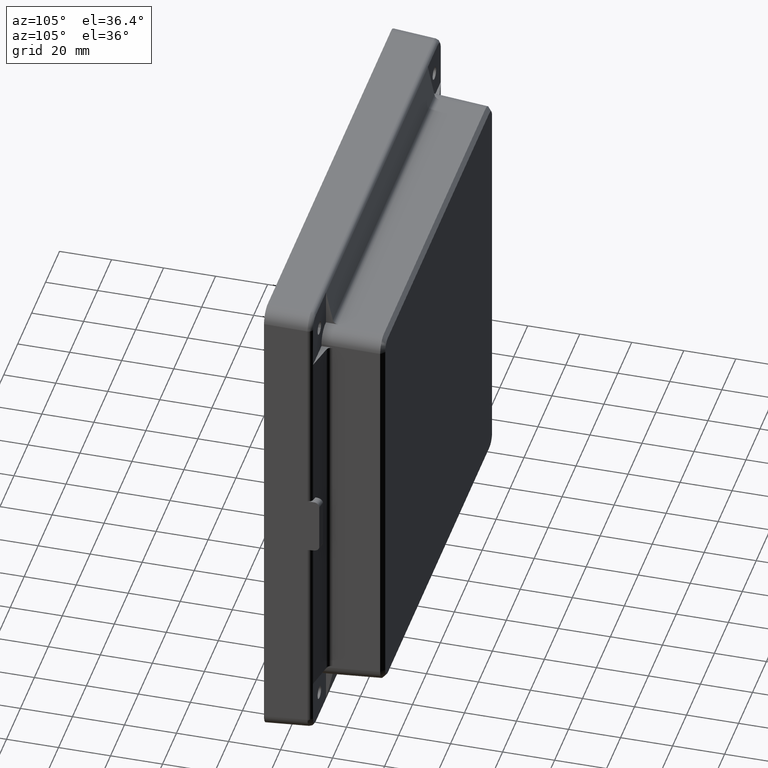
[diagram: clean part render]
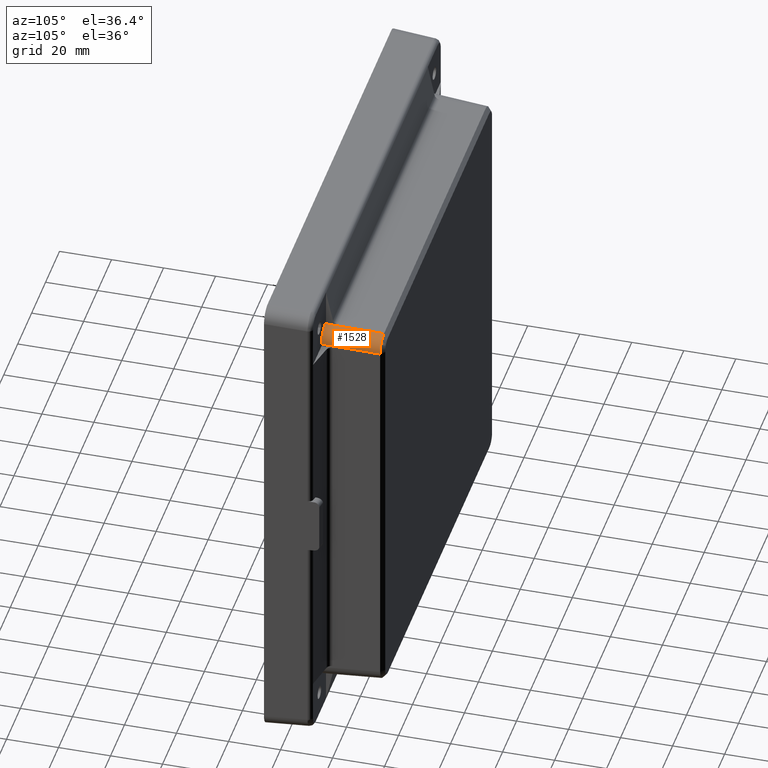
[diagram: same view with one face highlighted and labeled with its STEP entity id]
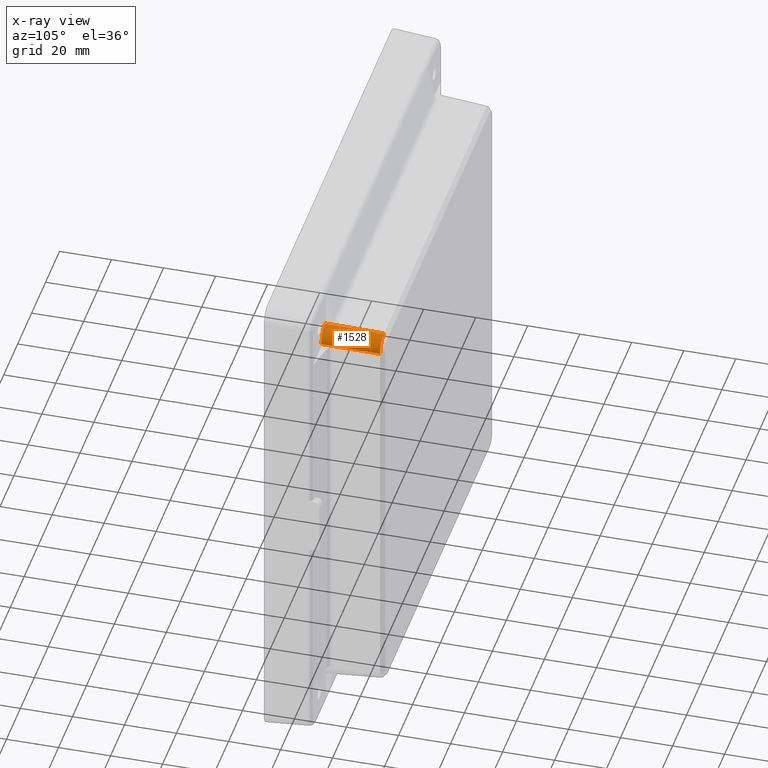
[diagram: x-ray of the same camera — body ghosted, the highlighted face saturated]
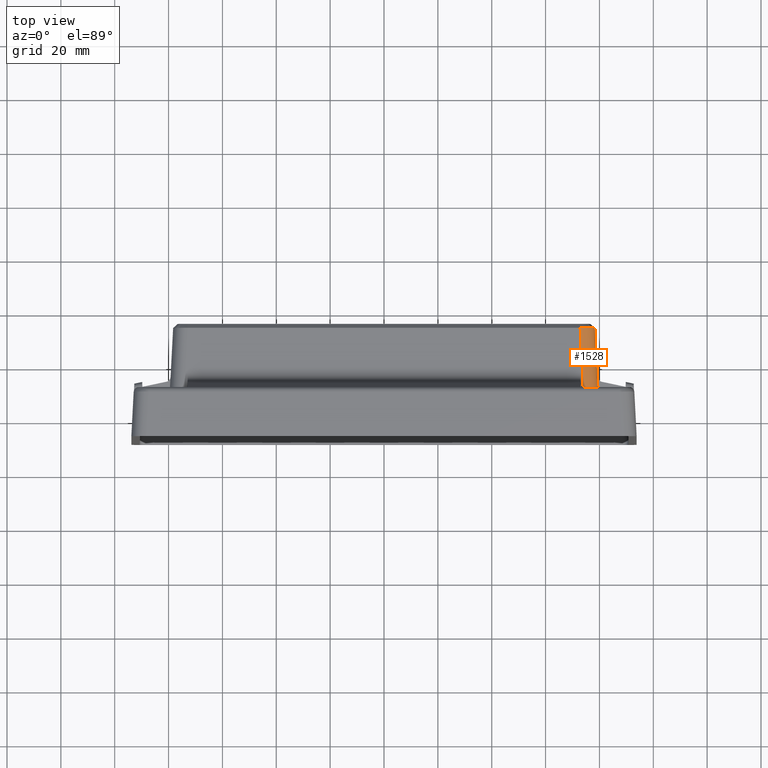
[diagram: same view with one face highlighted and labeled with its STEP entity id]
A machine part, auxiliary view. The second image highlights one B-rep face of the part: STEP entity #1528.
The next image is the same camera in x-ray: the body ghosted, the highlighted face saturated — about 0% of this face is hidden behind the body in this view.
A second angle (top view) of the same face is appended — the face is thin or edge-on in the first view.
In plain terms, the highlighted face is a freeform B-spline surface patch.
Its self-contained STEP definition (entity closure, byte-faithful):
#68 = CARTESIAN_POINT ( 'NONE',  ( 78.19257425562209100, 32.50979039867434000, 74.36611753135186100 ) ) ;
#136 = AXIS2_PLACEMENT_3D ( 'NONE', #3120, #2458, #1789 ) ;
#269 = ORIENTED_EDGE ( 'NONE', *, *, #2089, .F. ) ;
#346 = CARTESIAN_POINT ( 'NONE',  ( 78.19257425562209100, 32.50979039867434000, 74.36611753135186100 ) ) ;
#392 = CARTESIAN_POINT ( 'NONE',  ( 73.96967373504922700, 10.26305314132466200, 79.96213617619935100 ) ) ;
#416 = CARTESIAN_POINT ( 'NONE',  ( 73.86611751265680000, 32.50979093077406600, 78.69257422593514700 ) ) ;
#594 = EDGE_CURVE ( 'NONE', #4984, #1934, #2687, .T. ) ;
#851 = FACE_OUTER_BOUND ( 'NONE', #4111, .T. ) ;
#1033 = CARTESIAN_POINT ( 'NONE',  ( 78.26197522933144100, 32.50205569786814400, 74.01615419277695200 ) ) ;
#1053 = CARTESIAN_POINT ( 'NONE',  ( 78.29663943874103900, 32.50205569786815100, 73.30417699759087200 ) ) ;
#1083 = CARTESIAN_POINT ( 'NONE',  ( 76.02158700479181200, 32.50205569786818000, 78.79663943874099600 ) ) ;
#1243 = VERTEX_POINT ( 'NONE', #1053 ) ;
#1528 = ADVANCED_FACE ( 'NONE', ( #851 ), #6335, .F. ) ;
#1714 = CARTESIAN_POINT ( 'NONE',  ( 78.29663943874103900, 32.50205569786814400, 73.66100944764303900 ) ) ;
#1766 = CARTESIAN_POINT ( 'NONE',  ( 77.18708374225015200, 10.26305314132466300, 79.96213617619933700 ) ) ;
#1789 = DIRECTION ( 'NONE',  ( 0.0000000000000000000, 0.0000000000000000000, 1.000000000000000000 ) ) ;
#1803 = VECTOR ( 'NONE', #2147, 1000.000000000000200 ) ;
#1934 = VERTEX_POINT ( 'NONE', #4890 ) ;
#2089 = EDGE_CURVE ( 'NONE', #1243, #4411, #4048, .T. ) ;
#2147 = DIRECTION ( 'NONE',  ( -0.05226442768871404600, 0.9972646886342372300, -0.05226442768871402500 ) ) ;
#2188 = EDGE_CURVE ( 'NONE', #5834, #4984, #3757, .T. ) ;
#2303 = CARTESIAN_POINT ( 'NONE',  ( 73.96967373504922700, 10.26305314132466200, 79.96213617619935100 ) ) ;
#2388 = CARTESIAN_POINT ( 'NONE',  ( 78.29663943874103900, 32.50205569786815100, 73.30417699759087200 ) ) ;
#2401 =( BOUNDED_CURVE ( )  B_SPLINE_CURVE ( 3, ( #2388, #1714, #1033, #346 ),
 .UNSPECIFIED., .F., .T. ) 
 B_SPLINE_CURVE_WITH_KNOTS ( ( 4, 4 ),
 ( 0.0000000000000000000, 1.000000000000000000 ),
 .UNSPECIFIED. ) 
 CURVE ( )  GEOMETRIC_REPRESENTATION_ITEM ( )  RATIONAL_B_SPLINE_CURVE ( ( 1.000000000000000000, 0.9968468769810654400, 0.9968468769810654400, 1.000000000000000000 ) ) 
 REPRESENTATION_ITEM ( '' )  );
#2408 = ORIENTED_EDGE ( 'NONE', *, *, #4771, .T. ) ;
#2432 = CARTESIAN_POINT ( 'NONE',  ( 78.29663943874103900, 32.50205569786818000, 76.52158700479179700 ) ) ;
#2458 = DIRECTION ( 'NONE',  ( -0.0000000000000000000, -1.000000000000000000, -0.0000000000000000000 ) ) ;
#2687 =( BOUNDED_CURVE ( )  B_SPLINE_CURVE ( 3, ( #416, #6237, #5575, #4916 ),
 .UNSPECIFIED., .F., .F. ) 
 B_SPLINE_CURVE_WITH_KNOTS ( ( 4, 4 ),
 ( 0.0000000000000000000, 1.000000000000000000 ),
 .UNSPECIFIED. ) 
 CURVE ( )  GEOMETRIC_REPRESENTATION_ITEM ( )  RATIONAL_B_SPLINE_CURVE ( ( 1.000000000000000000, 0.9968468769811278400, 0.9968468769811278400, 1.000000000000000000 ) ) 
 REPRESENTATION_ITEM ( '' )  );
#2740 = DIRECTION ( 'NONE',  ( 0.05226442768871403200, -0.9972646886342372300, 0.05226442768871403200 ) ) ;
#2809 = CARTESIAN_POINT ( 'NONE',  ( 74.08548934242557500, 8.053159706404091600, 80.07795178357569900 ) ) ;
#3071 = CARTESIAN_POINT ( 'NONE',  ( 79.46213617619938000, 10.26305314132466200, 74.46967373504919900 ) ) ;
#3094 = CARTESIAN_POINT ( 'NONE',  ( 79.46213617619938000, 10.26305314132466300, 77.68708374225012400 ) ) ;
#3120 = CARTESIAN_POINT ( 'NONE',  ( 73.96967373504922700, 10.26305314132466200, 74.46967373504919900 ) ) ;
#3392 = CARTESIAN_POINT ( 'NONE',  ( 79.57522021317410600, 8.105281174609722000, 74.58275777202392500 ) ) ;
#3496 = CARTESIAN_POINT ( 'NONE',  ( 73.86611751265680000, 32.50979093077406600, 78.69257422593514700 ) ) ;
#3726 = VERTEX_POINT ( 'NONE', #2303 ) ;
#3745 = CARTESIAN_POINT ( 'NONE',  ( 78.29663943874103900, 32.50205569786818000, 73.30417699759087200 ) ) ;
#3757 =( BOUNDED_CURVE ( )  B_SPLINE_CURVE ( 3, ( #68, #5895, #5235, #4580 ),
 .UNSPECIFIED., .F., .F. ) 
 B_SPLINE_CURVE_WITH_KNOTS ( ( 4, 4 ),
 ( 0.0000000000000000000, 1.000000000000000000 ),
 .UNSPECIFIED. ) 
 CURVE ( )  GEOMETRIC_REPRESENTATION_ITEM ( )  RATIONAL_B_SPLINE_CURVE ( ( 1.000000000000000000, 0.8869958288577637400, 0.8869958288577637400, 1.000000000000000000 ) ) 
 REPRESENTATION_ITEM ( '' )  );
#3768 = EDGE_CURVE ( 'NONE', #3726, #1934, #4121, .T. ) ;
#4048 = LINE ( 'NONE', #3392, #4614 ) ;
#4111 = EDGE_LOOP ( 'NONE', ( #2408, #4257, #6101, #6412, #4994, #269 ) ) ;
#4121 = LINE ( 'NONE', #2809, #1803 ) ;
#4257 = ORIENTED_EDGE ( 'NONE', *, *, #2188, .T. ) ;
#4388 = CARTESIAN_POINT ( 'NONE',  ( 79.46213617619938000, 10.26305314132466200, 74.46967373504919900 ) ) ;
#4411 = VERTEX_POINT ( 'NONE', #3071 ) ;
#4580 = CARTESIAN_POINT ( 'NONE',  ( 73.86611751265680000, 32.50979093077406600, 78.69257422593514700 ) ) ;
#4614 = VECTOR ( 'NONE', #2740, 1000.000000000000200 ) ;
#4771 = EDGE_CURVE ( 'NONE', #1243, #5834, #2401, .T. ) ;
#4890 = CARTESIAN_POINT ( 'NONE',  ( 72.80417699759090100, 32.50205569786815100, 78.79663943874101100 ) ) ;
#4891 = EDGE_CURVE ( 'NONE', #4411, #3726, #5380, .T. ) ;
#4916 = CARTESIAN_POINT ( 'NONE',  ( 72.80417699759090100, 32.50205569786815100, 78.79663943874101100 ) ) ;
#4984 = VERTEX_POINT ( 'NONE', #3496 ) ;
#4994 = ORIENTED_EDGE ( 'NONE', *, *, #4891, .F. ) ;
#5235 = CARTESIAN_POINT ( 'NONE',  ( 76.12233978859325100, 32.50205569786815100, 78.24832373107373900 ) ) ;
#5359 = CARTESIAN_POINT ( 'NONE',  ( 78.19257425562209100, 32.50979039867434000, 74.36611753135186100 ) ) ;
#5380 = CIRCLE ( 'NONE', #136, 5.492462441150147300 ) ;
#5575 = CARTESIAN_POINT ( 'NONE',  ( 73.16100944763951500, 32.50205569786815800, 78.79663943874102500 ) ) ;
#5834 = VERTEX_POINT ( 'NONE', #5359 ) ;
#5895 = CARTESIAN_POINT ( 'NONE',  ( 77.74832373106738700, 32.50205569786815100, 76.62233978860277300 ) ) ;
#6101 = ORIENTED_EDGE ( 'NONE', *, *, #594, .T. ) ;
#6218 = CARTESIAN_POINT ( 'NONE',  ( 72.80417699759090100, 32.50205569786818000, 78.79663943874101100 ) ) ;
#6237 = CARTESIAN_POINT ( 'NONE',  ( 73.51615419276994600, 32.50205569786815800, 78.76197522933210800 ) ) ;
#6335 =( BOUNDED_SURFACE ( )  B_SPLINE_SURFACE ( 3, 1, ( 
 ( #4388, #3745 ),
 ( #3094, #2432 ),
 ( #1766, #1083 ),
 ( #392, #6218 ) ),
 .UNSPECIFIED., .F., .F., .F. ) 
 B_SPLINE_SURFACE_WITH_KNOTS ( ( 4, 4 ),
 ( 2, 2 ),
 ( 0.0000000000000000000, 1.000000000000000000 ),
 ( 0.0000000000000000000, 1.000000000000000000 ),
 .UNSPECIFIED. ) 
 GEOMETRIC_REPRESENTATION_ITEM ( )  RATIONAL_B_SPLINE_SURFACE ( (
 ( 1.000000000000000000, 1.000000000000000000),
 ( 0.8047378541243649400, 0.8047378541243649400),
 ( 0.8047378541243649400, 0.8047378541243649400),
 ( 1.000000000000000000, 1.000000000000000000) ) ) 
 REPRESENTATION_ITEM ( '' )  SURFACE ( )  );
#6412 = ORIENTED_EDGE ( 'NONE', *, *, #3768, .F. ) ;